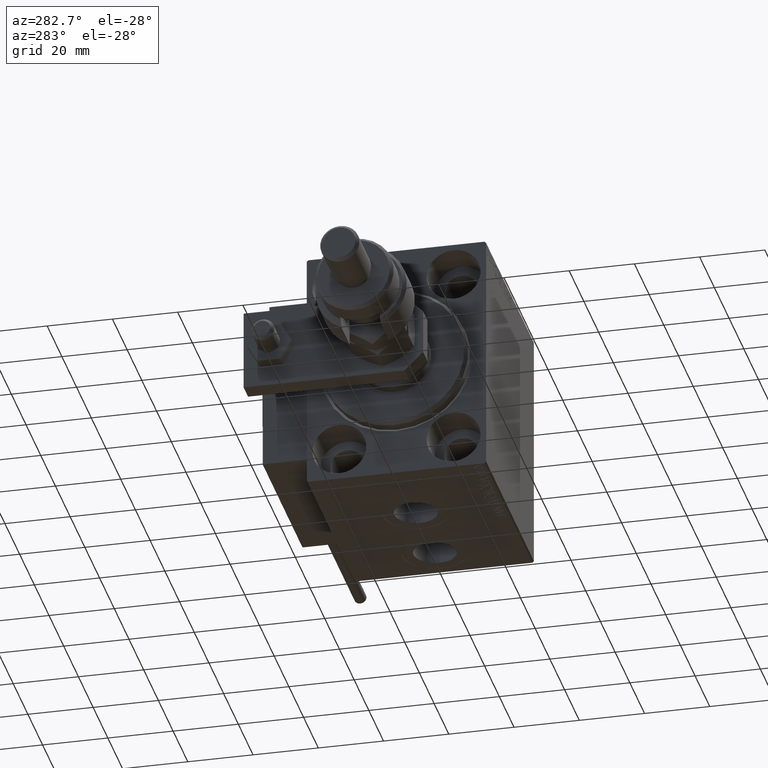
[diagram: clean part render]
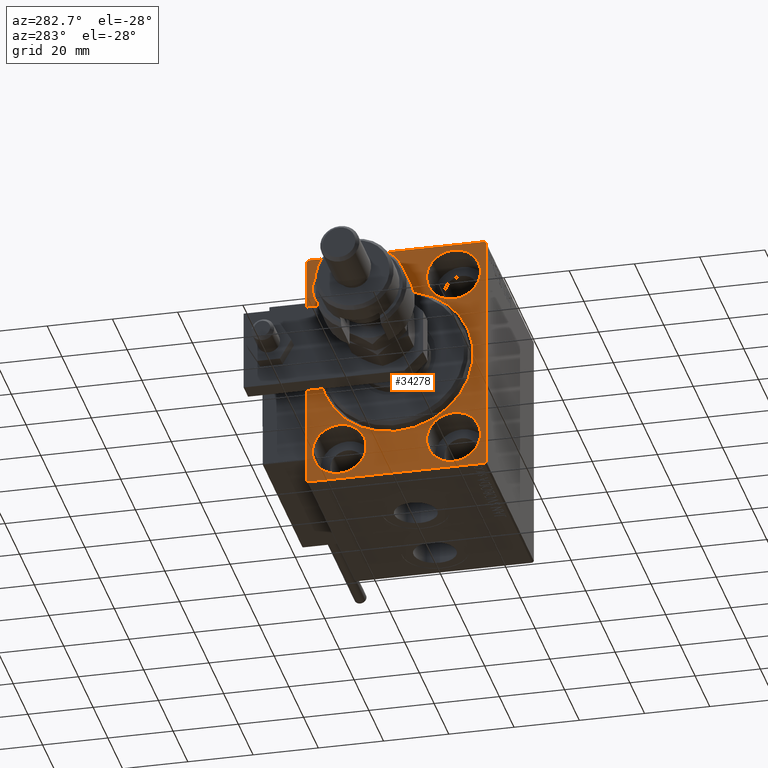
[diagram: same view with one face highlighted and labeled with its STEP entity id]
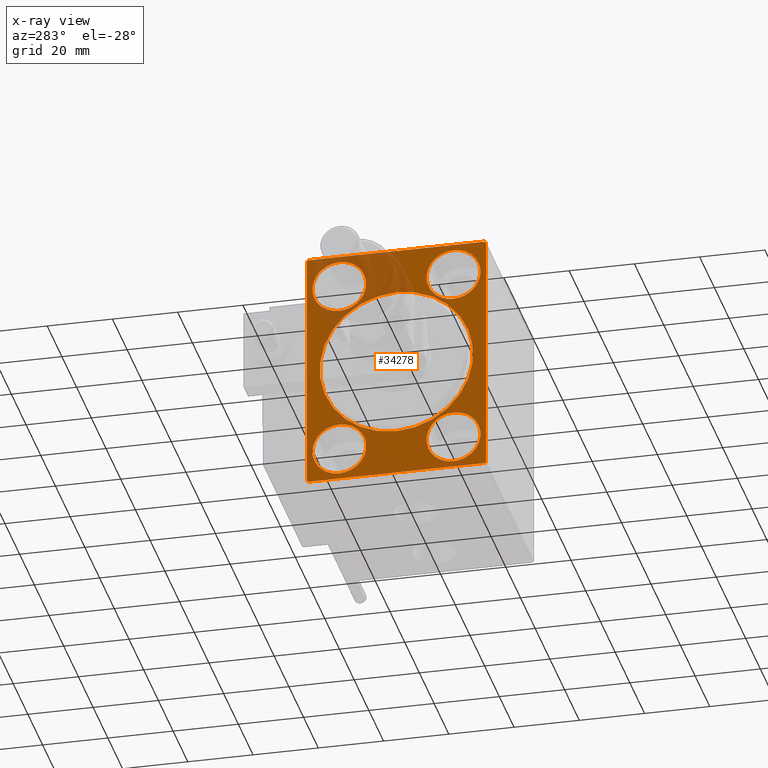
[diagram: x-ray of the same camera — body ghosted, the highlighted face saturated]
A machine part, auxiliary view. The second image highlights one B-rep face of the part: STEP entity #34278.
The next image is the same camera in x-ray: the body ghosted, the highlighted face saturated — about 17% of this face is hidden behind the body in this view.
In plain terms, the highlighted planar face has unit normal (1, 0, 0).
Its self-contained STEP definition (entity closure, byte-faithful):
#89 = VECTOR ( 'NONE', #43782, 1000.000000000000114 ) ;
#139 = CARTESIAN_POINT ( 'NONE',  ( 0.000000000000000000, 27.00000000000001066, 37.50000000000000711 ) ) ;
#284 = VERTEX_POINT ( 'NONE', #53739 ) ;
#732 = FACE_BOUND ( 'NONE', #39976, .T. ) ;
#735 = CARTESIAN_POINT ( 'NONE',  ( 0.000000000000000000, -27.50000000000000355, 37.00000000000001421 ) ) ;
#748 = VERTEX_POINT ( 'NONE', #2796 ) ;
#1384 = DIRECTION ( 'NONE',  ( 0.000000000000000000, 0.000000000000000000, -1.000000000000000000 ) ) ;
#1526 = DIRECTION ( 'NONE',  ( -1.000000000000000000, 0.000000000000000000, 0.000000000000000000 ) ) ;
#2589 = CIRCLE ( 'NONE', #4361, 8.250000000000000000 ) ;
#2796 = CARTESIAN_POINT ( 'NONE',  ( 0.000000000000000000, 17.49999999999999645, -19.25000000000000355 ) ) ;
#3196 = CARTESIAN_POINT ( 'NONE',  ( 0.000000000000000000, 17.49999999999999645, -27.50000000000000355 ) ) ;
#3497 = EDGE_CURVE ( 'NONE', #38884, #12538, #28819, .T. ) ;
#3555 = VECTOR ( 'NONE', #51489, 1000.000000000000114 ) ;
#4278 = CARTESIAN_POINT ( 'NONE',  ( 0.000000000000000000, 27.49999999999999645, 37.50000000000000711 ) ) ;
#4309 = VECTOR ( 'NONE', #28566, 1000.000000000000000 ) ;
#4361 = AXIS2_PLACEMENT_3D ( 'NONE', #42306, #21206, #16792 ) ;
#4558 = DIRECTION ( 'NONE',  ( 0.000000000000000000, -1.000000000000000000, -1.261617073437677999E-16 ) ) ;
#4810 = ORIENTED_EDGE ( 'NONE', *, *, #20908, .F. ) ;
#5398 = CARTESIAN_POINT ( 'NONE',  ( 0.000000000000000000, 0.000000000000000000, 0.000000000000000000 ) ) ;
#5634 = VERTEX_POINT ( 'NONE', #38700 ) ;
#5900 = EDGE_LOOP ( 'NONE', ( #15790, #9240 ) ) ;
#6364 = DIRECTION ( 'NONE',  ( 0.000000000000000000, 0.000000000000000000, 1.000000000000000000 ) ) ;
#6532 = EDGE_CURVE ( 'NONE', #7744, #13586, #45325, .T. ) ;
#6626 = CARTESIAN_POINT ( 'NONE',  ( 0.000000000000000000, 27.00000000000000355, -37.50000000000000000 ) ) ;
#6803 = ORIENTED_EDGE ( 'NONE', *, *, #34480, .F. ) ;
#7587 = DIRECTION ( 'NONE',  ( -1.000000000000000000, 0.000000000000000000, 0.000000000000000000 ) ) ;
#7744 = VERTEX_POINT ( 'NONE', #13005 ) ;
#7847 = CIRCLE ( 'NONE', #24506, 8.249999999999992895 ) ;
#8141 = CARTESIAN_POINT ( 'NONE',  ( 0.000000000000000000, -17.50000000000000355, -27.50000000000000355 ) ) ;
#8191 = EDGE_LOOP ( 'NONE', ( #13107, #52158, #4810, #16816, #6803, #48486, #40104, #9675 ) ) ;
#8431 = CARTESIAN_POINT ( 'NONE',  ( 0.000000000000000000, 27.49999999999999645, 37.00000000000001421 ) ) ;
#8716 = DIRECTION ( 'NONE',  ( 1.000000000000000000, 0.000000000000000000, 0.000000000000000000 ) ) ;
#9190 = VERTEX_POINT ( 'NONE', #19070 ) ;
#9240 = ORIENTED_EDGE ( 'NONE', *, *, #19269, .T. ) ;
#9457 = DIRECTION ( 'NONE',  ( 0.000000000000000000, -9.251858538542970348E-17, 1.000000000000000000 ) ) ;
#9464 = CARTESIAN_POINT ( 'NONE',  ( 0.000000000000000000, -17.50000000000000355, -35.75000000000000711 ) ) ;
#9670 = CARTESIAN_POINT ( 'NONE',  ( 0.000000000000000000, 27.50000000000000355, -37.00000000000000000 ) ) ;
#9675 = ORIENTED_EDGE ( 'NONE', *, *, #17153, .T. ) ;
#9788 = PLANE ( 'NONE',  #51202 ) ;
#11211 = AXIS2_PLACEMENT_3D ( 'NONE', #3196, #7587, #36664 ) ;
#11395 = ORIENTED_EDGE ( 'NONE', *, *, #6532, .F. ) ;
#11620 = VERTEX_POINT ( 'NONE', #47545 ) ;
#11812 = CARTESIAN_POINT ( 'NONE',  ( 0.000000000000000000, -27.50000000000000355, 37.50000000000000000 ) ) ;
#11987 = DIRECTION ( 'NONE',  ( -1.000000000000000000, 0.000000000000000000, 0.000000000000000000 ) ) ;
#12386 = CIRCLE ( 'NONE', #37785, 8.250000000000000000 ) ;
#12538 = VERTEX_POINT ( 'NONE', #8431 ) ;
#12955 = CARTESIAN_POINT ( 'NONE',  ( 0.000000000000000000, 17.50000000000000355, 19.25000000000000000 ) ) ;
#13005 = CARTESIAN_POINT ( 'NONE',  ( 0.000000000000000000, -17.49999999999999645, 19.25000000000000000 ) ) ;
#13094 = LINE ( 'NONE', #735, #3555 ) ;
#13107 = ORIENTED_EDGE ( 'NONE', *, *, #47322, .F. ) ;
#13552 = CIRCLE ( 'NONE', #44231, 8.249999999999992895 ) ;
#13586 = VERTEX_POINT ( 'NONE', #41028 ) ;
#13739 = CARTESIAN_POINT ( 'NONE',  ( 0.000000000000000000, 0.000000000000000000, 0.000000000000000000 ) ) ;
#13887 = FACE_BOUND ( 'NONE', #5900, .T. ) ;
#14165 = DIRECTION ( 'NONE',  ( 0.000000000000000000, -0.7071067811865474617, -0.7071067811865474617 ) ) ;
#14202 = LINE ( 'NONE', #22439, #26103 ) ;
#14695 = LINE ( 'NONE', #26796, #89 ) ;
#14755 = EDGE_CURVE ( 'NONE', #43665, #43727, #37645, .T. ) ;
#14964 = VECTOR ( 'NONE', #14165, 1000.000000000000114 ) ;
#15790 = ORIENTED_EDGE ( 'NONE', *, *, #29724, .T. ) ;
#16510 = CARTESIAN_POINT ( 'NONE',  ( 0.000000000000000000, 17.50000000000000355, 35.74999999999999289 ) ) ;
#16611 = VERTEX_POINT ( 'NONE', #20303 ) ;
#16792 = DIRECTION ( 'NONE',  ( 0.000000000000000000, 0.000000000000000000, 1.000000000000000000 ) ) ;
#16816 = ORIENTED_EDGE ( 'NONE', *, *, #3497, .T. ) ;
#17131 = EDGE_CURVE ( 'NONE', #22855, #47162, #30631, .T. ) ;
#17153 = EDGE_CURVE ( 'NONE', #11620, #5634, #14695, .T. ) ;
#17194 = FACE_BOUND ( 'NONE', #30129, .T. ) ;
#17698 = LINE ( 'NONE', #4278, #43260 ) ;
#18368 = DIRECTION ( 'NONE',  ( 1.000000000000000000, 0.000000000000000000, 0.000000000000000000 ) ) ;
#18697 = CARTESIAN_POINT ( 'NONE',  ( 0.000000000000000000, 17.49999999999999645, -27.50000000000000355 ) ) ;
#19070 = CARTESIAN_POINT ( 'NONE',  ( 0.000000000000000000, 2.877919977996282293E-15, -23.50000000000001776 ) ) ;
#19124 = VERTEX_POINT ( 'NONE', #16510 ) ;
#19269 = EDGE_CURVE ( 'NONE', #9190, #284, #49330, .T. ) ;
#19567 = CIRCLE ( 'NONE', #35335, 23.50000000000001776 ) ;
#19919 = AXIS2_PLACEMENT_3D ( 'NONE', #43497, #51740, #30889 ) ;
#20303 = CARTESIAN_POINT ( 'NONE',  ( 0.000000000000000000, 17.49999999999999645, -35.75000000000000711 ) ) ;
#20542 = VECTOR ( 'NONE', #9457, 1000.000000000000000 ) ;
#20908 = EDGE_CURVE ( 'NONE', #38884, #32956, #17698, .T. ) ;
#21044 = DIRECTION ( 'NONE',  ( 0.000000000000000000, 0.000000000000000000, 1.000000000000000000 ) ) ;
#21142 = LINE ( 'NONE', #11812, #4309 ) ;
#21206 = DIRECTION ( 'NONE',  ( -1.000000000000000000, 0.000000000000000000, 0.000000000000000000 ) ) ;
#21807 = CARTESIAN_POINT ( 'NONE',  ( 0.000000000000000000, 27.50000000000000355, -37.50000000000000000 ) ) ;
#22439 = CARTESIAN_POINT ( 'NONE',  ( 0.000000000000000000, -27.50000000000000355, -37.50000000000000000 ) ) ;
#22855 = VERTEX_POINT ( 'NONE', #9670 ) ;
#22956 = CARTESIAN_POINT ( 'NONE',  ( 0.000000000000000000, 27.50000000000000355, -37.00000000000000000 ) ) ;
#23165 = EDGE_CURVE ( 'NONE', #43727, #43665, #2589, .T. ) ;
#24506 = AXIS2_PLACEMENT_3D ( 'NONE', #31449, #1526, #35012 ) ;
#24616 = EDGE_LOOP ( 'NONE', ( #47610, #35717 ) ) ;
#25134 = CARTESIAN_POINT ( 'NONE',  ( 0.000000000000000000, -17.49999999999999645, 27.49999999999999645 ) ) ;
#25352 = EDGE_CURVE ( 'NONE', #19124, #46950, #34194, .T. ) ;
#26103 = VECTOR ( 'NONE', #52859, 1000.000000000000000 ) ;
#26269 = FACE_OUTER_BOUND ( 'NONE', #8191, .T. ) ;
#26439 = CARTESIAN_POINT ( 'NONE',  ( 0.000000000000000000, -27.50000000000000355, 37.00000000000001421 ) ) ;
#26796 = CARTESIAN_POINT ( 'NONE',  ( 0.000000000000000000, -27.00000000000000355, -37.50000000000000000 ) ) ;
#26994 = EDGE_CURVE ( 'NONE', #748, #16611, #12386, .T. ) ;
#28566 = DIRECTION ( 'NONE',  ( 0.000000000000000000, 0.000000000000000000, -1.000000000000000000 ) ) ;
#28819 = LINE ( 'NONE', #41142, #30343 ) ;
#28877 = ORIENTED_EDGE ( 'NONE', *, *, #26994, .F. ) ;
#29247 = DIRECTION ( 'NONE',  ( -1.000000000000000000, 0.000000000000000000, 0.000000000000000000 ) ) ;
#29724 = EDGE_CURVE ( 'NONE', #284, #9190, #19567, .T. ) ;
#29821 = AXIS2_PLACEMENT_3D ( 'NONE', #38074, #37528, #46578 ) ;
#30129 = EDGE_LOOP ( 'NONE', ( #36052, #37081 ) ) ;
#30343 = VECTOR ( 'NONE', #41404, 1000.000000000000000 ) ;
#30631 = LINE ( 'NONE', #22956, #14964 ) ;
#30889 = DIRECTION ( 'NONE',  ( 0.000000000000000000, 0.000000000000000000, 1.000000000000000000 ) ) ;
#31449 = CARTESIAN_POINT ( 'NONE',  ( 0.000000000000000000, 17.50000000000000355, 27.49999999999999645 ) ) ;
#32258 = ORIENTED_EDGE ( 'NONE', *, *, #42899, .F. ) ;
#32956 = VERTEX_POINT ( 'NONE', #50602 ) ;
#33218 = ORIENTED_EDGE ( 'NONE', *, *, #35347, .F. ) ;
#34194 = CIRCLE ( 'NONE', #29821, 8.249999999999992895 ) ;
#34278 = ADVANCED_FACE ( 'NONE', ( #13887, #732, #38589, #47358, #17194, #26269 ), #9788, .F. ) ;
#34297 = CARTESIAN_POINT ( 'NONE',  ( 0.000000000000000000, 0.000000000000000000, 0.000000000000000000 ) ) ;
#34480 = EDGE_CURVE ( 'NONE', #22855, #12538, #50613, .T. ) ;
#34864 = CIRCLE ( 'NONE', #11211, 8.250000000000000000 ) ;
#35012 = DIRECTION ( 'NONE',  ( 0.000000000000000000, 0.000000000000000000, 1.000000000000000000 ) ) ;
#35335 = AXIS2_PLACEMENT_3D ( 'NONE', #34297, #18368, #35368 ) ;
#35347 = EDGE_CURVE ( 'NONE', #13586, #7744, #13552, .T. ) ;
#35368 = DIRECTION ( 'NONE',  ( 0.000000000000000000, 0.000000000000000000, -1.000000000000000000 ) ) ;
#35717 = ORIENTED_EDGE ( 'NONE', *, *, #46478, .F. ) ;
#36052 = ORIENTED_EDGE ( 'NONE', *, *, #14755, .F. ) ;
#36664 = DIRECTION ( 'NONE',  ( 0.000000000000000000, 0.000000000000000000, 1.000000000000000000 ) ) ;
#37081 = ORIENTED_EDGE ( 'NONE', *, *, #23165, .F. ) ;
#37528 = DIRECTION ( 'NONE',  ( -1.000000000000000000, 0.000000000000000000, 0.000000000000000000 ) ) ;
#37645 = CIRCLE ( 'NONE', #38549, 8.250000000000000000 ) ;
#37785 = AXIS2_PLACEMENT_3D ( 'NONE', #18697, #43928, #6364 ) ;
#38074 = CARTESIAN_POINT ( 'NONE',  ( 0.000000000000000000, 17.50000000000000355, 27.49999999999999645 ) ) ;
#38549 = AXIS2_PLACEMENT_3D ( 'NONE', #8141, #11987, #21044 ) ;
#38589 = FACE_BOUND ( 'NONE', #42557, .T. ) ;
#38700 = CARTESIAN_POINT ( 'NONE',  ( 0.000000000000000000, -27.50000000000000355, -37.00000000000000000 ) ) ;
#38799 = AXIS2_PLACEMENT_3D ( 'NONE', #13739, #38984, #1384 ) ;
#38857 = DIRECTION ( 'NONE',  ( 0.000000000000000000, 0.000000000000000000, -1.000000000000000000 ) ) ;
#38884 = VERTEX_POINT ( 'NONE', #139 ) ;
#38984 = DIRECTION ( 'NONE',  ( 1.000000000000000000, 0.000000000000000000, 0.000000000000000000 ) ) ;
#39976 = EDGE_LOOP ( 'NONE', ( #28877, #32258 ) ) ;
#40104 = ORIENTED_EDGE ( 'NONE', *, *, #42724, .F. ) ;
#41028 = CARTESIAN_POINT ( 'NONE',  ( 0.000000000000000000, -17.49999999999999645, 35.74999999999999289 ) ) ;
#41142 = CARTESIAN_POINT ( 'NONE',  ( 0.000000000000000000, 27.00000000000001066, 37.50000000000000711 ) ) ;
#41404 = DIRECTION ( 'NONE',  ( -0.000000000000000000, 0.7071067811865426878, -0.7071067811865524577 ) ) ;
#42306 = CARTESIAN_POINT ( 'NONE',  ( 0.000000000000000000, -17.50000000000000355, -27.50000000000000355 ) ) ;
#42557 = EDGE_LOOP ( 'NONE', ( #33218, #11395 ) ) ;
#42724 = EDGE_CURVE ( 'NONE', #11620, #47162, #14202, .T. ) ;
#42899 = EDGE_CURVE ( 'NONE', #16611, #748, #34864, .T. ) ;
#43194 = CARTESIAN_POINT ( 'NONE',  ( 0.000000000000000000, -17.50000000000000355, -19.25000000000000355 ) ) ;
#43260 = VECTOR ( 'NONE', #4558, 1000.000000000000000 ) ;
#43497 = CARTESIAN_POINT ( 'NONE',  ( 0.000000000000000000, -17.49999999999999645, 27.49999999999999645 ) ) ;
#43665 = VERTEX_POINT ( 'NONE', #43194 ) ;
#43727 = VERTEX_POINT ( 'NONE', #9464 ) ;
#43782 = DIRECTION ( 'NONE',  ( -0.000000000000000000, -0.7071067811865474617, 0.7071067811865474617 ) ) ;
#43928 = DIRECTION ( 'NONE',  ( -1.000000000000000000, 0.000000000000000000, 0.000000000000000000 ) ) ;
#44231 = AXIS2_PLACEMENT_3D ( 'NONE', #25134, #29247, #49807 ) ;
#45325 = CIRCLE ( 'NONE', #19919, 8.249999999999992895 ) ;
#45935 = VERTEX_POINT ( 'NONE', #26439 ) ;
#46478 = EDGE_CURVE ( 'NONE', #46950, #19124, #7847, .T. ) ;
#46578 = DIRECTION ( 'NONE',  ( 0.000000000000000000, 0.000000000000000000, 1.000000000000000000 ) ) ;
#46950 = VERTEX_POINT ( 'NONE', #12955 ) ;
#47162 = VERTEX_POINT ( 'NONE', #6626 ) ;
#47322 = EDGE_CURVE ( 'NONE', #45935, #5634, #21142, .T. ) ;
#47358 = FACE_BOUND ( 'NONE', #24616, .T. ) ;
#47545 = CARTESIAN_POINT ( 'NONE',  ( 0.000000000000000000, -27.00000000000000355, -37.50000000000000000 ) ) ;
#47610 = ORIENTED_EDGE ( 'NONE', *, *, #25352, .F. ) ;
#48486 = ORIENTED_EDGE ( 'NONE', *, *, #17131, .T. ) ;
#49330 = CIRCLE ( 'NONE', #38799, 23.50000000000001776 ) ;
#49807 = DIRECTION ( 'NONE',  ( 0.000000000000000000, 0.000000000000000000, 1.000000000000000000 ) ) ;
#50602 = CARTESIAN_POINT ( 'NONE',  ( 0.000000000000000000, -27.00000000000001776, 37.50000000000000000 ) ) ;
#50613 = LINE ( 'NONE', #21807, #20542 ) ;
#51202 = AXIS2_PLACEMENT_3D ( 'NONE', #5398, #8716, #38857 ) ;
#51489 = DIRECTION ( 'NONE',  ( -0.000000000000000000, 0.7071067811865474617, 0.7071067811865474617 ) ) ;
#51740 = DIRECTION ( 'NONE',  ( -1.000000000000000000, 0.000000000000000000, 0.000000000000000000 ) ) ;
#52158 = ORIENTED_EDGE ( 'NONE', *, *, #52863, .T. ) ;
#52859 = DIRECTION ( 'NONE',  ( 0.000000000000000000, 1.000000000000000000, 0.000000000000000000 ) ) ;
#52863 = EDGE_CURVE ( 'NONE', #45935, #32956, #13094, .T. ) ;
#53739 = CARTESIAN_POINT ( 'NONE',  ( 0.000000000000000000, 0.000000000000000000, 23.50000000000001776 ) ) ;